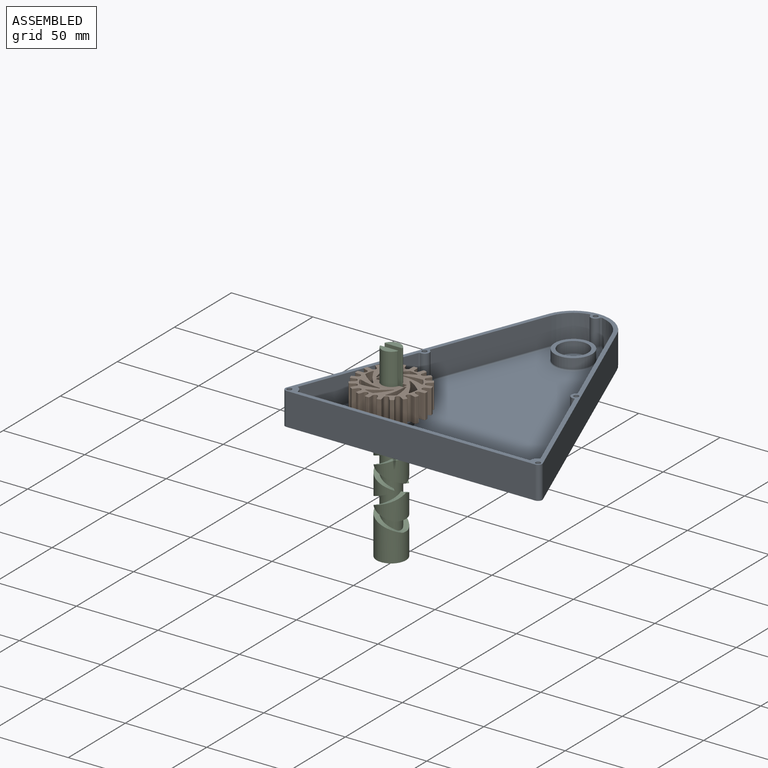
[diagram: assembled view]
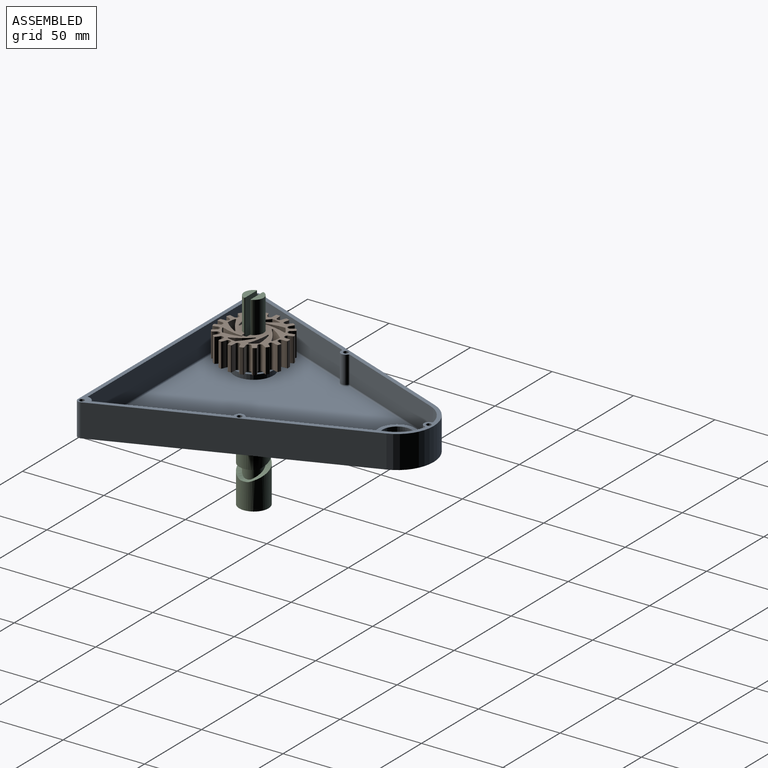
[diagram: assembled view, second angle]
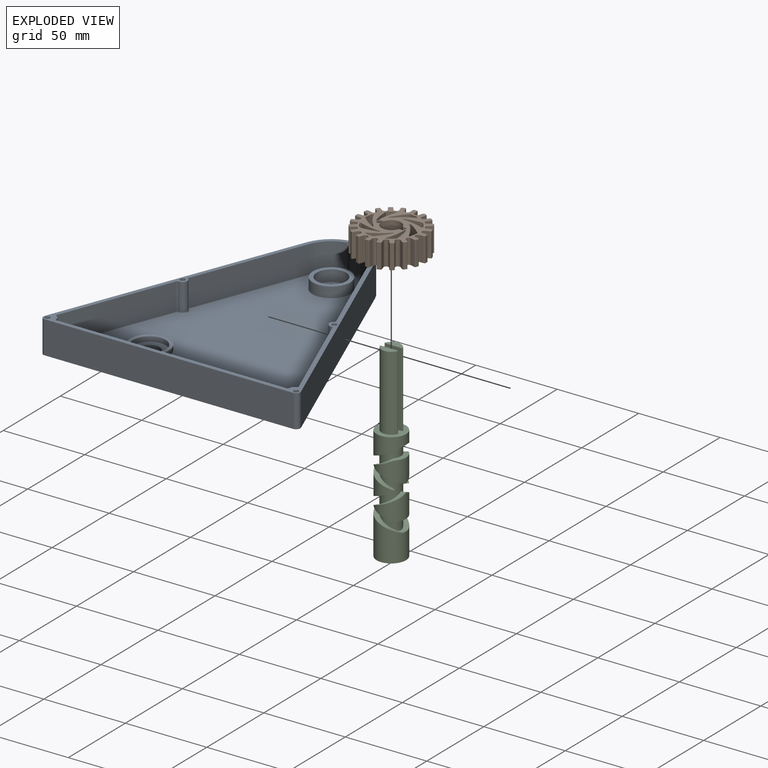
[diagram: exploded view]
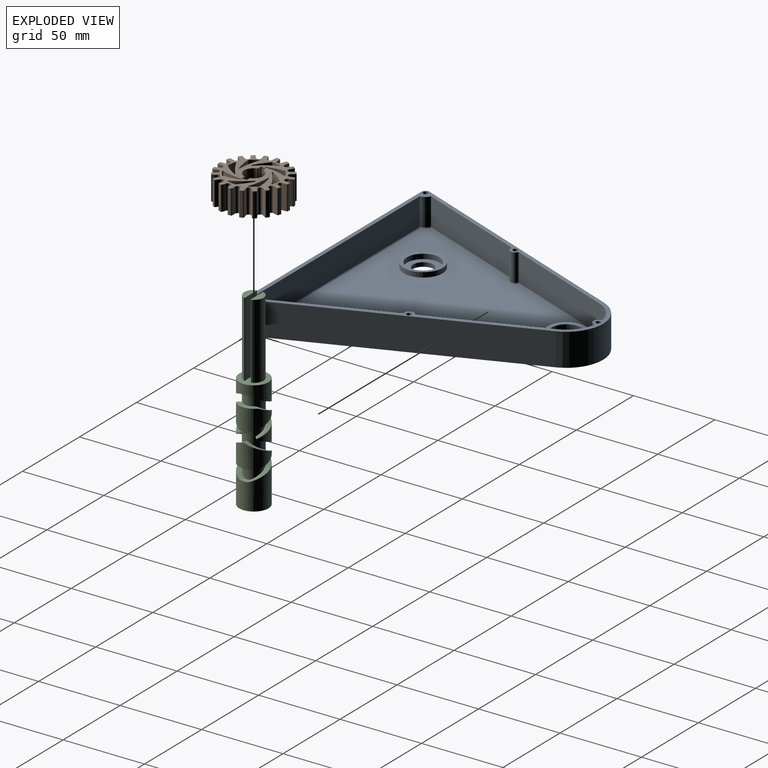
[diagram: exploded view, second angle]
ASSEMBLY  parts=3 mates=2
PART A: 66 faces, bbox 157.7x165x20 mm
  f0: plane 20x20mm, normal (0,0,1), area 191.4mm2, adj f62,f63
  f1: plane 67.86x26.59mm, normal (-0.93,-0.36,0), area 1217.2mm2, adj f4,f16,f25,f50
  f2: plane 157.76x146.99mm, normal (0,0,1), area 12900.2mm2, adj f3,f4,f6,f7,f27,f30,f31,f32
  f3: cylinder r=0.8mm len=68.15mm, axis (0.36,-0.93,0), area 91.6mm2, adj f2,f18,f30,f53
  f4: cylinder r=0.8mm len=68.15mm, axis (0.36,-0.93,0), area 91.2mm2, adj f1,f2,f31,f51
  f5: plane 67.86x26.59mm, normal (0.93,-0.36,0), area 1217.2mm2, adj f6,f16,f24,f59
  f6: cylinder r=0.8mm len=68.15mm, axis (0.36,0.93,0), area 91.2mm2, adj f2,f5,f33,f58
  f7: cylinder r=0.8mm len=68.15mm, axis (0.36,0.93,0), area 91.6mm2, adj f2,f19,f34,f56
  f8: cylinder r=20mm len=16.7mm, axis (0,0,-1), area 334.1mm2, adj f16,f18,f28,f29,f30
  f9: cylinder r=20mm len=16.7mm, axis (0,0,-1), area 334.1mm2, adj f16,f19,f34,f35,f36
  f10: plane 142.67x16.7mm, normal (0,1,0), area 2382.6mm2, adj f16,f24,f25,f32
  f11: plane 18x18mm, normal (0,0,1), area 167.9mm2, adj f20,f21
  f12: plane 152.67x20mm, normal (0,-1,0), area 3053.4mm2, adj f16,f17,f60,f61
  f13: plane 147.3x57.71mm, normal (0.93,0.36,0), area 3164mm2, adj f14,f16,f17,f60
  f14: cylinder r=22.5mm len=41.9mm, axis (0,0,-1), area 1077.6mm2, adj f13,f15,f16,f17
  f15: plane 147.3x57.71mm, normal (-0.93,0.36,0), area 3164mm2, adj f14,f16,f17,f61
  f16: plane 165x157.67mm, normal (0,0,1), area 1352.3mm2, adj f1,f5,f8,f9,f10,f12,f13,f14
  f17: plane 165x157.67mm, normal (0,0,-1), area 15432.6mm2, adj f12,f13,f14,f15,f20,f60,f61,f62
  f18: plane 67.86x26.59mm, normal (-0.93,-0.36,0), area 1217.2mm2, adj f3,f8,f16,f54
  f19: plane 67.86x26.59mm, normal (0.93,-0.36,0), area 1217.2mm2, adj f7,f9,f16,f55
  f20: cylinder r=5.25mm len=10.5mm, axis (0,0,1), area 82.5mm2, adj f11,f17
  f21: cylinder r=9mm len=18mm, axis (0,0,-1), area 395.8mm2, adj f11,f23
  f22: cylinder r=11.5mm len=23mm, axis (0,0,-1), area 448mm2, adj f23,f37
  f23: plane 23x23mm, normal (0,0,1), area 161mm2, adj f21,f22
  f24: cylinder r=5mm len=16.7mm, axis (0,0,-1), area 100mm2, adj f5,f10,f16,f33
  f25: cylinder r=5mm len=16.7mm, axis (0,0,-1), area 100mm2, adj f1,f10,f16,f31
  f26: cylinder r=3mm len=15.5mm, axis (0,0,-1), area 129.7mm2, adj f16,f27,f28,f36
  f27: torus R=5mm, axis (0,0,1), area 32.5mm2, adj f2,f26,f29,f35
  f28: cylinder r=0.8mm len=15.5mm, axis (0,0,-1), area 19.7mm2, adj f8,f16,f26,f29
  f29: bspline ~2.45x2.28mm, area 3.5mm2, adj f8,f27,f28,f30
  f30: torus R=19.2mm, axis (0,0,1), area 23.2mm2, adj f2,f3,f8,f29
  f31: torus R=5.8mm, axis (0,0,1), area 7.2mm2, adj f2,f4,f25,f32
  f32: cylinder r=0.8mm len=142.67mm, axis (-1,0,0), area 178.6mm2, adj f2,f10,f31,f33
  f33: torus R=5.8mm, axis (0,0,1), area 7.2mm2, adj f2,f6,f24,f32
  f34: torus R=19.2mm, axis (0,0,1), area 23.2mm2, adj f2,f7,f9,f35
  f35: bspline ~2.45x2.28mm, area 3.5mm2, adj f9,f27,f34,f36
  f36: cylinder r=0.8mm len=15.5mm, axis (0,0,1), area 19.7mm2, adj f9,f16,f26,f35
  f37: torus R=12.3mm, axis (0,0,1), area 93.1mm2, adj f2,f22
  f38: cylinder r=3mm len=16.7mm, axis (0,0,-1), area 136.1mm2, adj f16,f55,f57,f59
  f39: cylinder r=3mm len=16.7mm, axis (0,0,-1), area 136.1mm2, adj f16,f50,f52,f54
  f40: plane 3x3mm, normal (0,0,1), area 7.1mm2, adj f41
  f41: cylinder r=1.5mm len=17.5mm, axis (0,0,1), area 164.9mm2, adj f16,f40
  f42: plane 3x3mm, normal (0,0,1), area 7.1mm2, adj f43
  f43: cylinder r=1.5mm len=17.5mm, axis (0,0,1), area 164.9mm2, adj f16,f42
  f44: plane 3x3mm, normal (0,0,1), area 7.1mm2, adj f45
  f45: cylinder r=1.5mm len=17.5mm, axis (0,0,1), area 164.9mm2, adj f16,f44
  f46: plane 3x3mm, normal (0,0,1), area 7.1mm2, adj f47
  f47: cylinder r=1.5mm len=17.5mm, axis (0,0,1), area 164.9mm2, adj f16,f46
  f48: plane 3x3mm, normal (0,0,1), area 7.1mm2, adj f49
  f49: cylinder r=1.5mm len=17.5mm, axis (0,0,1), area 164.9mm2, adj f16,f48
  f50: cylinder r=0.8mm len=16.7mm, axis (0,0,-1), area 18.2mm2, adj f1,f16,f39,f51
  f51: sphere r=0.8mm, area 0.9mm2, adj f4,f50,f52
  f52: torus R=3.8mm, axis (0,0,1), area 11.2mm2, adj f2,f39,f51,f53
  f53: sphere r=0.8mm, area 0.9mm2, adj f3,f52,f54
  f54: cylinder r=0.8mm len=16.7mm, axis (0,0,-1), area 18.2mm2, adj f16,f18,f39,f53
  f55: cylinder r=0.8mm len=16.7mm, axis (0,0,-1), area 18.2mm2, adj f16,f19,f38,f56
  f56: sphere r=0.8mm, area 0.9mm2, adj f7,f55,f57
  f57: torus R=3.8mm, axis (0,0,1), area 11.2mm2, adj f2,f38,f56,f58
  f58: sphere r=0.8mm, area 0.9mm2, adj f6,f57,f59
  f59: cylinder r=0.8mm len=16.7mm, axis (0,0,-1), area 18.2mm2, adj f5,f16,f38,f58
  f60: cylinder r=2.5mm len=20mm, axis (0,0,-1), area 97.2mm2, adj f12,f13,f16,f17
  f61: cylinder r=2.5mm len=20mm, axis (0,0,1), area 97.2mm2, adj f12,f15,f16,f17
  f62: cylinder r=6.25mm len=12.5mm, axis (0,0,1), area 98.2mm2, adj f0,f17
  f63: cylinder r=10mm len=20mm, axis (0,0,-1), area 188.5mm2, adj f0,f65
  f64: cylinder r=12mm len=24mm, axis (0,0,-1), area 226.2mm2, adj f2,f65
  f65: plane 24x24mm, normal (0,0,1), area 138.2mm2, adj f63,f64
PART B: 226 faces, bbox 43.1x43.1x15 mm
  f0: plane 43.07x43.07mm, normal (0,0,1), area 775.2mm2, adj f2,f3,f4,f5,f6,f7,f8,f9
  f1: plane 43.07x43.07mm, normal (0,0,-1), area 775.2mm2, adj f2,f3,f4,f5,f6,f7,f8,f9
  f2: cylinder r=6mm len=15mm, axis (0,0,1), area 226.3mm2, adj f0,f1,f156,f160
  f3: cylinder r=1.52mm len=15mm, axis (0,0,-1), area 64.4mm2, adj f0,f1,f4,f122
  f4: plane 15x1mm, normal (-1,0,0), area 15mm2, adj f0,f1,f3,f5
  f5: cylinder r=10mm len=15mm, axis (0,0,-1), area 26.6mm2, adj f0,f1,f4,f186
  f6: cylinder r=21.54mm len=15mm, axis (0,0,-1), area 25.9mm2, adj f0,f1,f186,f187
  f7: cylinder r=10mm len=15mm, axis (0,0,-1), area 26.6mm2, adj f0,f1,f8,f187
  f8: plane 15x1mm, normal (1,0,0), area 15mm2, adj f0,f1,f7,f9
  f9: cylinder r=1.52mm len=15mm, axis (0,0,-1), area 64.4mm2, adj f0,f1,f8,f10
  f10: plane 15x0.95mm, normal (-0.95,-0.31,0), area 15mm2, adj f0,f1,f9,f11
  f11: cylinder r=10mm len=15mm, axis (0,0,-1), area 26.6mm2, adj f0,f1,f10,f188
  f12: cylinder r=21.54mm len=15mm, axis (0,0,-1), area 25.9mm2, adj f0,f1,f188,f189
  f13: cylinder r=10mm len=15mm, axis (0,0,-1), area 26.6mm2, adj f0,f1,f14,f189
  f14: plane 15x0.95mm, normal (0.95,0.31,0), area 15mm2, adj f0,f1,f13,f15
  f15: cylinder r=1.52mm len=15mm, axis (0,0,-1), area 64.4mm2, adj f0,f1,f14,f16
  f16: plane 15x0.81mm, normal (-0.81,-0.59,0), area 15mm2, adj f0,f1,f15,f17
  f17: cylinder r=10mm len=15mm, axis (0,0,-1), area 26.6mm2, adj f0,f1,f16,f190
  f18: cylinder r=21.54mm len=15mm, axis (0,0,-1), area 25.9mm2, adj f0,f1,f190,f191
  f19: cylinder r=10mm len=15mm, axis (0,0,-1), area 26.6mm2, adj f0,f1,f20,f191
  f20: plane 15x0.81mm, normal (0.81,0.59,0), area 15mm2, adj f0,f1,f19,f21
  f21: cylinder r=1.52mm len=15mm, axis (0,0,-1), area 64.4mm2, adj f0,f1,f20,f22
  f22: plane 15x0.81mm, normal (-0.59,-0.81,0), area 15mm2, adj f0,f1,f21,f23
  f23: cylinder r=10mm len=15mm, axis (0,0,-1), area 26.6mm2, adj f0,f1,f22,f192
  f24: cylinder r=21.54mm len=15mm, axis (0,0,-1), area 25.9mm2, adj f0,f1,f192,f193
  f25: cylinder r=10mm len=15mm, axis (0,0,-1), area 26.6mm2, adj f0,f1,f26,f193
  f26: plane 15x0.81mm, normal (0.59,0.81,0), area 15mm2, adj f0,f1,f25,f27
  f27: cylinder r=1.52mm len=15mm, axis (0,0,-1), area 64.4mm2, adj f0,f1,f26,f28
  f28: plane 15x0.95mm, normal (-0.31,-0.95,0), area 15mm2, adj f0,f1,f27,f29
  f29: cylinder r=10mm len=15mm, axis (0,0,-1), area 26.6mm2, adj f0,f1,f28,f194
  f30: cylinder r=21.54mm len=15mm, axis (0,0,-1), area 25.9mm2, adj f0,f1,f194,f195
  f31: cylinder r=10mm len=15mm, axis (0,0,-1), area 26.6mm2, adj f0,f1,f32,f195
  f32: plane 15x0.95mm, normal (0.31,0.95,0), area 15mm2, adj f0,f1,f31,f33
  f33: cylinder r=1.52mm len=15mm, axis (0,0,-1), area 64.4mm2, adj f0,f1,f32,f34
  f34: plane 15x1mm, normal (0,-1,0), area 15mm2, adj f0,f1,f33,f35
  f35: cylinder r=10mm len=15mm, axis (0,0,-1), area 26.6mm2, adj f0,f1,f34,f196
  f36: cylinder r=21.54mm len=15mm, axis (0,0,-1), area 25.9mm2, adj f0,f1,f196,f197
  f37: cylinder r=10mm len=15mm, axis (0,0,-1), area 26.6mm2, adj f0,f1,f38,f197
  f38: plane 15x1mm, normal (0,1,0), area 15mm2, adj f0,f1,f37,f39
  f39: cylinder r=1.52mm len=15mm, axis (0,0,-1), area 64.4mm2, adj f0,f1,f38,f40
  f40: plane 15x0.95mm, normal (0.31,-0.95,0), area 15mm2, adj f0,f1,f39,f41
  f41: cylinder r=10mm len=15mm, axis (0,0,-1), area 26.6mm2, adj f0,f1,f40,f198
  f42: cylinder r=21.54mm len=15mm, axis (0,0,-1), area 25.9mm2, adj f0,f1,f198,f199
  f43: cylinder r=10mm len=15mm, axis (0,0,-1), area 26.6mm2, adj f0,f1,f44,f199
  f44: plane 15x0.95mm, normal (-0.31,0.95,0), area 15mm2, adj f0,f1,f43,f45
  f45: cylinder r=1.52mm len=15mm, axis (0,0,-1), area 64.4mm2, adj f0,f1,f44,f46
  f46: plane 15x0.81mm, normal (0.59,-0.81,0), area 15mm2, adj f0,f1,f45,f47
  f47: cylinder r=10mm len=15mm, axis (0,0,-1), area 26.6mm2, adj f0,f1,f46,f200
  f48: cylinder r=21.54mm len=15mm, axis (0,0,-1), area 25.9mm2, adj f0,f1,f200,f201
  f49: cylinder r=10mm len=15mm, axis (0,0,-1), area 26.6mm2, adj f0,f1,f50,f201
  f50: plane 15x0.81mm, normal (-0.59,0.81,0), area 15mm2, adj f0,f1,f49,f51
  f51: cylinder r=1.52mm len=15mm, axis (0,0,-1), area 64.4mm2, adj f0,f1,f50,f52
  f52: plane 15x0.81mm, normal (0.81,-0.59,0), area 15mm2, adj f0,f1,f51,f53
  f53: cylinder r=10mm len=15mm, axis (0,0,-1), area 26.6mm2, adj f0,f1,f52,f202
  f54: cylinder r=21.54mm len=15mm, axis (0,0,-1), area 25.9mm2, adj f0,f1,f202,f203
  f55: cylinder r=10mm len=15mm, axis (0,0,-1), area 26.6mm2, adj f0,f1,f56,f203
  f56: plane 15x0.81mm, normal (-0.81,0.59,0), area 15mm2, adj f0,f1,f55,f57
  f57: cylinder r=1.52mm len=15mm, axis (0,0,-1), area 64.4mm2, adj f0,f1,f56,f58
  f58: plane 15x0.95mm, normal (0.95,-0.31,0), area 15mm2, adj f0,f1,f57,f59
  f59: cylinder r=10mm len=15mm, axis (0,0,-1), area 26.6mm2, adj f0,f1,f58,f204
  f60: cylinder r=21.54mm len=15mm, axis (0,0,-1), area 25.9mm2, adj f0,f1,f204,f205
  f61: cylinder r=10mm len=15mm, axis (0,0,-1), area 26.6mm2, adj f0,f1,f62,f205
  f62: plane 15x0.95mm, normal (-0.95,0.31,0), area 15mm2, adj f0,f1,f61,f63
  f63: cylinder r=1.52mm len=15mm, axis (0,0,-1), area 64.4mm2, adj f0,f1,f62,f64
  f64: plane 15x1mm, normal (1,0,0), area 15mm2, adj f0,f1,f63,f65
  f65: cylinder r=10mm len=15mm, axis (0,0,-1), area 26.6mm2, adj f0,f1,f64,f206
  f66: cylinder r=21.54mm len=15mm, axis (0,0,-1), area 25.9mm2, adj f0,f1,f206,f207
  f67: cylinder r=10mm len=15mm, axis (0,0,-1), area 26.6mm2, adj f0,f1,f68,f207
  f68: plane 15x1mm, normal (-1,0,0), area 15mm2, adj f0,f1,f67,f69
  f69: cylinder r=1.52mm len=15mm, axis (0,0,-1), area 64.4mm2, adj f0,f1,f68,f70
  f70: plane 15x0.95mm, normal (0.95,0.31,0), area 15mm2, adj f0,f1,f69,f71
  f71: cylinder r=10mm len=15mm, axis (0,0,-1), area 26.6mm2, adj f0,f1,f70,f208
  f72: cylinder r=21.54mm len=15mm, axis (0,0,-1), area 25.9mm2, adj f0,f1,f208,f209
  f73: cylinder r=10mm len=15mm, axis (0,0,-1), area 26.6mm2, adj f0,f1,f74,f209
  f74: plane 15x0.95mm, normal (-0.95,-0.31,0), area 15mm2, adj f0,f1,f73,f75
  f75: cylinder r=1.52mm len=15mm, axis (0,0,-1), area 64.4mm2, adj f0,f1,f74,f76
  f76: plane 15x0.81mm, normal (0.81,0.59,0), area 15mm2, adj f0,f1,f75,f77
  f77: cylinder r=10mm len=15mm, axis (0,0,-1), area 26.6mm2, adj f0,f1,f76,f210
  f78: cylinder r=21.54mm len=15mm, axis (0,0,-1), area 25.9mm2, adj f0,f1,f210,f211
  f79: cylinder r=10mm len=15mm, axis (0,0,-1), area 26.6mm2, adj f0,f1,f80,f211
  f80: plane 15x0.81mm, normal (-0.81,-0.59,0), area 15mm2, adj f0,f1,f79,f81
  f81: cylinder r=1.52mm len=15mm, axis (0,0,-1), area 64.4mm2, adj f0,f1,f80,f82
  f82: plane 15x0.81mm, normal (0.59,0.81,0), area 15mm2, adj f0,f1,f81,f83
  f83: cylinder r=10mm len=15mm, axis (0,0,-1), area 26.6mm2, adj f0,f1,f82,f212
  f84: cylinder r=21.54mm len=15mm, axis (0,0,-1), area 25.9mm2, adj f0,f1,f212,f213
  f85: cylinder r=10mm len=15mm, axis (0,0,-1), area 26.6mm2, adj f0,f1,f86,f213
  f86: plane 15x0.81mm, normal (-0.59,-0.81,0), area 15mm2, adj f0,f1,f85,f87
  f87: cylinder r=1.52mm len=15mm, axis (0,0,-1), area 64.4mm2, adj f0,f1,f86,f88
  f88: plane 15x0.95mm, normal (0.31,0.95,0), area 15mm2, adj f0,f1,f87,f89
  f89: cylinder r=10mm len=15mm, axis (0,0,-1), area 26.6mm2, adj f0,f1,f88,f214
  f90: cylinder r=21.54mm len=15mm, axis (0,0,-1), area 25.9mm2, adj f0,f1,f214,f215
  f91: cylinder r=10mm len=15mm, axis (0,0,-1), area 26.6mm2, adj f0,f1,f92,f215
  f92: plane 15x0.95mm, normal (-0.31,-0.95,0), area 15mm2, adj f0,f1,f91,f93
  f93: cylinder r=1.52mm len=15mm, axis (0,0,-1), area 64.4mm2, adj f0,f1,f92,f94
  f94: plane 15x1mm, normal (0,1,0), area 15mm2, adj f0,f1,f93,f95
  f95: cylinder r=10mm len=15mm, axis (0,0,-1), area 26.6mm2, adj f0,f1,f94,f216
  f96: cylinder r=21.54mm len=15mm, axis (0,0,-1), area 25.9mm2, adj f0,f1,f216,f217
  f97: cylinder r=10mm len=15mm, axis (0,0,-1), area 26.6mm2, adj f0,f1,f98,f217
  f98: plane 15x1mm, normal (0,-1,0), area 15mm2, adj f0,f1,f97,f99
  f99: cylinder r=1.52mm len=15mm, axis (0,0,-1), area 64.4mm2, adj f0,f1,f98,f100
  f100: plane 15x0.95mm, normal (-0.31,0.95,0), area 15mm2, adj f0,f1,f99,f101
  f101: cylinder r=10mm len=15mm, axis (0,0,-1), area 26.6mm2, adj f0,f1,f100,f218
  f102: cylinder r=21.54mm len=15mm, axis (0,0,-1), area 25.9mm2, adj f0,f1,f218,f219
  f103: cylinder r=10mm len=15mm, axis (0,0,-1), area 26.6mm2, adj f0,f1,f104,f219
  f104: plane 15x0.95mm, normal (0.31,-0.95,0), area 15mm2, adj f0,f1,f103,f105
  f105: cylinder r=1.52mm len=15mm, axis (0,0,-1), area 64.4mm2, adj f0,f1,f104,f106
  f106: plane 15x0.81mm, normal (-0.59,0.81,0), area 15mm2, adj f0,f1,f105,f107
  f107: cylinder r=10mm len=15mm, axis (0,0,-1), area 26.6mm2, adj f0,f1,f106,f220
  f108: cylinder r=21.54mm len=15mm, axis (0,0,-1), area 25.9mm2, adj f0,f1,f220,f221
  f109: cylinder r=10mm len=15mm, axis (0,0,-1), area 26.6mm2, adj f0,f1,f110,f221
  f110: plane 15x0.81mm, normal (0.59,-0.81,0), area 15mm2, adj f0,f1,f109,f111
  f111: cylinder r=1.52mm len=15mm, axis (0,0,-1), area 64.4mm2, adj f0,f1,f110,f112
  f112: plane 15x0.81mm, normal (-0.81,0.59,0), area 15mm2, adj f0,f1,f111,f113
  f113: cylinder r=10mm len=15mm, axis (0,0,-1), area 26.6mm2, adj f0,f1,f112,f222
  f114: cylinder r=21.54mm len=15mm, axis (0,0,-1), area 25.9mm2, adj f0,f1,f222,f223
  f115: cylinder r=10mm len=15mm, axis (0,0,-1), area 26.6mm2, adj f0,f1,f116,f223
  f116: plane 15x0.81mm, normal (0.81,-0.59,0), area 15mm2, adj f0,f1,f115,f117
  f117: cylinder r=1.52mm len=15mm, axis (0,0,-1), area 64.4mm2, adj f0,f1,f116,f118
  f118: plane 15x0.95mm, normal (-0.95,0.31,0), area 15mm2, adj f0,f1,f117,f119
  f119: cylinder r=10mm len=15mm, axis (0,0,-1), area 26.6mm2, adj f0,f1,f118,f224
  f120: cylinder r=21.54mm len=15mm, axis (0,0,-1), area 25.9mm2, adj f0,f1,f224,f225
  f121: cylinder r=10mm len=15mm, axis (0,0,-1), area 26.6mm2, adj f0,f1,f122,f225
  f122: plane 15x0.95mm, normal (0.95,-0.31,0), area 15mm2, adj f0,f1,f3,f121
  f123: cylinder r=40mm len=15mm, axis (0,0,1), area 202.7mm2, adj f0,f1,f183,f185
  f124: cylinder r=16.13mm len=15mm, axis (0,0,1), area 77.7mm2, adj f0,f1,f184,f185
  f125: cylinder r=40mm len=15mm, axis (0,0,1), area 160.8mm2, adj f0,f1,f183,f184
  f126: cylinder r=6mm len=15mm, axis (0,0,1), area 226.3mm2, adj f0,f1,f157,f161
  f127: cylinder r=40mm len=15mm, axis (0,0,1), area 202.7mm2, adj f0,f1,f168,f170
  f128: cylinder r=16.13mm len=15mm, axis (0,0,1), area 77.7mm2, adj f0,f1,f169,f170
  f129: cylinder r=40mm len=15mm, axis (0,0,1), area 160.8mm2, adj f0,f1,f168,f169
  f130: cylinder r=40mm len=15mm, axis (0,0,1), area 202.7mm2, adj f0,f1,f162,f164
  f131: cylinder r=16.13mm len=15mm, axis (0,0,1), area 77.7mm2, adj f0,f1,f163,f164
  f132: cylinder r=40mm len=15mm, axis (0,0,1), area 160.8mm2, adj f0,f1,f162,f163
  f133: cylinder r=40mm len=15mm, axis (0,0,1), area 202.7mm2, adj f0,f1,f165,f167
  f134: cylinder r=16.13mm len=15mm, axis (0,0,1), area 77.7mm2, adj f0,f1,f166,f167
  f135: cylinder r=40mm len=15mm, axis (0,0,1), area 160.8mm2, adj f0,f1,f165,f166
  f136: cylinder r=40mm len=15mm, axis (0,0,1), area 202.7mm2, adj f0,f1,f177,f179
  f137: cylinder r=16.13mm len=15mm, axis (0,0,1), area 77.7mm2, adj f0,f1,f178,f179
  f138: cylinder r=40mm len=15mm, axis (0,0,1), area 160.8mm2, adj f0,f1,f177,f178
  f139: cylinder r=40mm len=15mm, axis (0,0,1), area 202.7mm2, adj f0,f1,f180,f182
  f140: cylinder r=16.13mm len=15mm, axis (0,0,1), area 77.7mm2, adj f0,f1,f180,f181
  f141: cylinder r=40mm len=15mm, axis (0,0,1), area 160.8mm2, adj f0,f1,f181,f182
  f142: cylinder r=40mm len=15mm, axis (0,0,1), area 202.7mm2, adj f0,f1,f171,f173
  f143: cylinder r=16.13mm len=15mm, axis (0,0,1), area 77.7mm2, adj f0,f1,f172,f173
  f144: cylinder r=40mm len=15mm, axis (0,0,1), area 160.8mm2, adj f0,f1,f171,f172
  f145: cylinder r=40mm len=15mm, axis (0,0,1), area 202.7mm2, adj f0,f1,f174,f176
  f146: cylinder r=16.13mm len=15mm, axis (0,0,1), area 77.7mm2, adj f0,f1,f175,f176
  f147: cylinder r=40mm len=15mm, axis (0,0,1), area 160.8mm2, adj f0,f1,f174,f175
  f148: plane 15x2.01mm, normal (0,1,0), area 30.2mm2, adj f0,f1,f154,f157
  f149: plane 15x2.35mm, normal (-1,0,0), area 35.2mm2, adj f0,f1,f154,f155
  f150: plane 15x2.01mm, normal (0,-1,0), area 30.2mm2, adj f0,f1,f155,f156
  f151: plane 15x2.01mm, normal (0,1,0), area 30.2mm2, adj f0,f1,f158,f161
  f152: plane 15x2.01mm, normal (0,-1,0), area 30.2mm2, adj f0,f1,f159,f160
  f153: plane 15x2.35mm, normal (1,0,0), area 35.2mm2, adj f0,f1,f158,f159
  f154: cylinder r=0.4mm len=15mm, axis (0,0,1), area 9.4mm2, adj f0,f1,f148,f149
  f155: cylinder r=0.4mm len=15mm, axis (0,0,-1), area 9.4mm2, adj f0,f1,f149,f150
  f156: cylinder r=0.4mm len=15mm, axis (0,0,1), area 7.5mm2, adj f0,f1,f2,f150
  f157: cylinder r=0.4mm len=15mm, axis (0,0,1), area 7.5mm2, adj f0,f1,f126,f148
  f158: cylinder r=0.4mm len=15mm, axis (0,0,-1), area 9.4mm2, adj f0,f1,f151,f153
  f159: cylinder r=0.4mm len=15mm, axis (0,0,1), area 9.4mm2, adj f0,f1,f152,f153
  f160: cylinder r=0.4mm len=15mm, axis (0,0,1), area 7.5mm2, adj f0,f1,f2,f152
  f161: cylinder r=0.4mm len=15mm, axis (0,0,1), area 7.5mm2, adj f0,f1,f126,f151
  f162: cylinder r=0.4mm len=15mm, axis (0,0,1), area 17mm2, adj f0,f1,f130,f132
  f163: cylinder r=0.4mm len=15mm, axis (0,0,-1), area 4.9mm2, adj f0,f1,f131,f132
  f164: cylinder r=0.4mm len=15mm, axis (0,0,1), area 14.3mm2, adj f0,f1,f130,f131
  f165: cylinder r=0.4mm len=15mm, axis (0,0,1), area 17mm2, adj f0,f1,f133,f135
  f166: cylinder r=0.4mm len=15mm, axis (0,0,-1), area 4.9mm2, adj f0,f1,f134,f135
  f167: cylinder r=0.4mm len=15mm, axis (0,0,1), area 14.3mm2, adj f0,f1,f133,f134
  f168: cylinder r=0.4mm len=15mm, axis (0,0,1), area 17mm2, adj f0,f1,f127,f129
  f169: cylinder r=0.4mm len=15mm, axis (0,0,-1), area 4.9mm2, adj f0,f1,f128,f129
  f170: cylinder r=0.4mm len=15mm, axis (0,0,1), area 14.3mm2, adj f0,f1,f127,f128
  f171: cylinder r=0.4mm len=15mm, axis (0,0,1), area 17mm2, adj f0,f1,f142,f144
  f172: cylinder r=0.4mm len=15mm, axis (0,0,-1), area 4.9mm2, adj f0,f1,f143,f144
  f173: cylinder r=0.4mm len=15mm, axis (0,0,1), area 14.3mm2, adj f0,f1,f142,f143
  f174: cylinder r=0.4mm len=15mm, axis (0,0,1), area 17mm2, adj f0,f1,f145,f147
  f175: cylinder r=0.4mm len=15mm, axis (0,0,-1), area 4.9mm2, adj f0,f1,f146,f147
  f176: cylinder r=0.4mm len=15mm, axis (0,0,1), area 14.3mm2, adj f0,f1,f145,f146
  f177: cylinder r=0.4mm len=15mm, axis (0,0,1), area 17mm2, adj f0,f1,f136,f138
  f178: cylinder r=0.4mm len=15mm, axis (0,0,-1), area 4.9mm2, adj f0,f1,f137,f138
  f179: cylinder r=0.4mm len=15mm, axis (0,0,1), area 14.3mm2, adj f0,f1,f136,f137
  f180: cylinder r=0.4mm len=15mm, axis (0,0,1), area 14.3mm2, adj f0,f1,f139,f140
  f181: cylinder r=0.4mm len=15mm, axis (0,0,-1), area 4.9mm2, adj f0,f1,f140,f141
  f182: cylinder r=0.4mm len=15mm, axis (0,0,1), area 17mm2, adj f0,f1,f139,f141
  f183: cylinder r=0.4mm len=15mm, axis (0,0,1), area 17mm2, adj f0,f1,f123,f125
  f184: cylinder r=0.4mm len=15mm, axis (0,0,-1), area 4.9mm2, adj f0,f1,f124,f125
  f185: cylinder r=0.4mm len=15mm, axis (0,0,1), area 14.3mm2, adj f0,f1,f123,f124
  f186: cylinder r=0.4mm len=15mm, axis (0,0,-1), area 8.1mm2, adj f0,f1,f5,f6
  f187: cylinder r=0.4mm len=15mm, axis (0,0,-1), area 8.1mm2, adj f0,f1,f6,f7
  f188: cylinder r=0.4mm len=15mm, axis (0,0,-1), area 8.1mm2, adj f0,f1,f11,f12
  f189: cylinder r=0.4mm len=15mm, axis (0,0,-1), area 8.1mm2, adj f0,f1,f12,f13
  f190: cylinder r=0.4mm len=15mm, axis (0,0,-1), area 8.1mm2, adj f0,f1,f17,f18
  f191: cylinder r=0.4mm len=15mm, axis (0,0,-1), area 8.1mm2, adj f0,f1,f18,f19
  f192: cylinder r=0.4mm len=15mm, axis (0,0,-1), area 8.1mm2, adj f0,f1,f23,f24
  f193: cylinder r=0.4mm len=15mm, axis (0,0,-1), area 8.1mm2, adj f0,f1,f24,f25
  f194: cylinder r=0.4mm len=15mm, axis (0,0,-1), area 8.1mm2, adj f0,f1,f29,f30
  f195: cylinder r=0.4mm len=15mm, axis (0,0,-1), area 8.1mm2, adj f0,f1,f30,f31
  f196: cylinder r=0.4mm len=15mm, axis (0,0,-1), area 8.1mm2, adj f0,f1,f35,f36
  f197: cylinder r=0.4mm len=15mm, axis (0,0,-1), area 8.1mm2, adj f0,f1,f36,f37
  f198: cylinder r=0.4mm len=15mm, axis (0,0,-1), area 8.1mm2, adj f0,f1,f41,f42
  f199: cylinder r=0.4mm len=15mm, axis (0,0,-1), area 8.1mm2, adj f0,f1,f42,f43
  f200: cylinder r=0.4mm len=15mm, axis (0,0,-1), area 8.1mm2, adj f0,f1,f47,f48
  f201: cylinder r=0.4mm len=15mm, axis (0,0,-1), area 8.1mm2, adj f0,f1,f48,f49
  f202: cylinder r=0.4mm len=15mm, axis (0,0,-1), area 8.1mm2, adj f0,f1,f53,f54
  f203: cylinder r=0.4mm len=15mm, axis (0,0,-1), area 8.1mm2, adj f0,f1,f54,f55
  f204: cylinder r=0.4mm len=15mm, axis (0,0,-1), area 8.1mm2, adj f0,f1,f59,f60
  f205: cylinder r=0.4mm len=15mm, axis (0,0,-1), area 8.1mm2, adj f0,f1,f60,f61
  f206: cylinder r=0.4mm len=15mm, axis (0,0,-1), area 8.1mm2, adj f0,f1,f65,f66
  f207: cylinder r=0.4mm len=15mm, axis (0,0,-1), area 8.1mm2, adj f0,f1,f66,f67
  f208: cylinder r=0.4mm len=15mm, axis (0,0,-1), area 8.1mm2, adj f0,f1,f71,f72
  f209: cylinder r=0.4mm len=15mm, axis (0,0,-1), area 8.1mm2, adj f0,f1,f72,f73
  f210: cylinder r=0.4mm len=15mm, axis (0,0,-1), area 8.1mm2, adj f0,f1,f77,f78
  f211: cylinder r=0.4mm len=15mm, axis (0,0,-1), area 8.1mm2, adj f0,f1,f78,f79
  f212: cylinder r=0.4mm len=15mm, axis (0,0,-1), area 8.1mm2, adj f0,f1,f83,f84
  f213: cylinder r=0.4mm len=15mm, axis (0,0,-1), area 8.1mm2, adj f0,f1,f84,f85
  f214: cylinder r=0.4mm len=15mm, axis (0,0,-1), area 8.1mm2, adj f0,f1,f89,f90
  f215: cylinder r=0.4mm len=15mm, axis (0,0,-1), area 8.1mm2, adj f0,f1,f90,f91
  f216: cylinder r=0.4mm len=15mm, axis (0,0,-1), area 8.1mm2, adj f0,f1,f95,f96
  f217: cylinder r=0.4mm len=15mm, axis (0,0,-1), area 8.1mm2, adj f0,f1,f96,f97
  f218: cylinder r=0.4mm len=15mm, axis (0,0,-1), area 8.1mm2, adj f0,f1,f101,f102
  f219: cylinder r=0.4mm len=15mm, axis (0,0,-1), area 8.1mm2, adj f0,f1,f102,f103
  f220: cylinder r=0.4mm len=15mm, axis (0,0,-1), area 8.1mm2, adj f0,f1,f107,f108
  f221: cylinder r=0.4mm len=15mm, axis (0,0,-1), area 8.1mm2, adj f0,f1,f108,f109
  f222: cylinder r=0.4mm len=15mm, axis (0,0,-1), area 8.1mm2, adj f0,f1,f113,f114
  f223: cylinder r=0.4mm len=15mm, axis (0,0,-1), area 8.1mm2, adj f0,f1,f114,f115
  f224: cylinder r=0.4mm len=15mm, axis (0,0,-1), area 8.1mm2, adj f0,f1,f119,f120
  f225: cylinder r=0.4mm len=15mm, axis (0,0,-1), area 8.1mm2, adj f0,f1,f120,f121
PART C: 58 faces, bbox 24x25.2x116 mm
  f0: cylinder r=5.95mm len=46mm, axis (0,0,1), area 642.1mm2, adj f1,f5,f42,f43
  f1: plane 11.03x4.2mm, normal (0,0,-1), area 34.9mm2, adj f0,f40,f42,f43
  f2: cylinder r=9mm len=18mm, axis (0,0,-1), area 384.3mm2, adj f13,f15,f29,f31,f50,f52,f56,f57
  f3: plane 3.05x3mm, normal (0,0,1), area 5.4mm2, adj f4,f7,f17,f18
  f4: cylinder r=9mm len=18mm, axis (0,0,-1), area 603.8mm2, adj f3,f5,f6,f8,f17,f18,f51
  f5: plane 18x18mm, normal (0,0,-1), area 184.6mm2, adj f0,f4,f38,f40,f41,f42,f43,f44
  f6: bspline ~24x12.62mm, area 67.3mm2, adj f4,f7,f17,f51
  f7: cylinder r=6mm len=48mm, axis (0,0,-1), area 718.6mm2, adj f3,f6,f8,f9,f10,f12,f13,f14
  f8: bspline ~24x12.62mm, area 67.3mm2, adj f4,f7,f18,f51
  f9: bspline ~19.42x9.09mm, area 34.5mm2, adj f7,f11,f19,f54
  f10: bspline ~19.42x9.09mm, area 34.5mm2, adj f7,f11,f20,f55
  f11: cylinder r=9mm len=18mm, axis (0,0,-1), area 361.4mm2, adj f9,f10,f12,f14,f16,f19,f20,f53
  f12: bspline ~21.71x12.62mm, area 58.6mm2, adj f7,f11,f53,f55
  f13: bspline ~21.71x12.62mm, area 58.6mm2, adj f2,f7,f52,f57
  f14: bspline ~21.71x12.62mm, area 58.6mm2, adj f7,f11,f53,f54
  f15: bspline ~21.71x12.62mm, area 58.6mm2, adj f2,f7,f56,f57
  f16: plane 12x4.02mm, normal (0,0,-1), area 30.6mm2, adj f7,f11,f19,f20
  f17: bspline ~5.53x3.52mm, area 7.2mm2, adj f3,f4,f6,f7
  f18: bspline ~5.22x3.39mm, area 7.2mm2, adj f3,f4,f7,f8
  f19: bspline ~4.73x4.36mm, area 7.3mm2, adj f7,f9,f11,f16
  f20: bspline ~5.55x5.24mm, area 7.3mm2, adj f7,f10,f11,f16
  f21: plane 3.05x3mm, normal (0,0,-1), area 5.4mm2, adj f7,f22,f33,f34
  f22: cylinder r=9mm len=26.21mm, axis (0,0,1), area 1169.3mm2, adj f21,f23,f24,f33,f34,f37,f49
  f23: bspline ~24x12.62mm, area 67.3mm2, adj f7,f22,f33,f49
  f24: bspline ~24x12.62mm, area 67.3mm2, adj f7,f22,f34,f49
  f25: bspline ~19.42x9.09mm, area 34.5mm2, adj f7,f27,f35,f47
  f26: bspline ~19.42x9.09mm, area 34.5mm2, adj f7,f27,f36,f46
  f27: cylinder r=9mm len=18mm, axis (0,0,1), area 361.4mm2, adj f25,f26,f28,f30,f32,f35,f36,f46
  f28: bspline ~21.71x12.62mm, area 58.6mm2, adj f7,f27,f46,f48
  f29: bspline ~21.71x12.62mm, area 58.6mm2, adj f2,f7,f50,f52
  f30: bspline ~21.71x12.62mm, area 58.6mm2, adj f7,f27,f47,f48
  f31: bspline ~21.71x12.62mm, area 58.6mm2, adj f2,f7,f50,f56
  f32: plane 12x4.02mm, normal (0,0,1), area 30.6mm2, adj f7,f27,f35,f36
  f33: bspline ~5.53x3.52mm, area 7.2mm2, adj f7,f21,f22,f23
  f34: bspline ~5.22x3.39mm, area 7.2mm2, adj f7,f21,f22,f24
  f35: bspline ~4.73x4.36mm, area 7.3mm2, adj f7,f25,f27,f32
  f36: bspline ~5.55x5.24mm, area 7.3mm2, adj f7,f26,f27,f32
  f37: plane 18x18mm, normal (0,0,1), area 254.5mm2, adj f22
  f38: cylinder r=5.95mm len=46mm, axis (0,0,1), area 642.1mm2, adj f5,f39,f44,f45
  f39: plane 11.03x4.2mm, normal (0,0,-1), area 34.9mm2, adj f38,f41,f44,f45
  f40: plane 46x10.23mm, normal (0,1,0), area 470.7mm2, adj f1,f5,f42,f43
  f41: plane 46x10.23mm, normal (0,-1,0), area 470.7mm2, adj f5,f39,f44,f45
  f42: cylinder r=0.4mm len=46mm, axis (0,0,1), area 36.2mm2, adj f0,f1,f5,f40
  f43: cylinder r=0.4mm len=46mm, axis (0,0,1), area 36.2mm2, adj f0,f1,f5,f40
  f44: cylinder r=0.4mm len=46mm, axis (0,0,1), area 36.2mm2, adj f5,f38,f39,f41
  f45: cylinder r=0.4mm len=46mm, axis (0,0,1), area 36.2mm2, adj f5,f38,f39,f41
  f46: bspline ~3.69x3.45mm, area 2mm2, adj f7,f26,f27,f28
  f47: bspline ~3.68x3.44mm, area 2mm2, adj f7,f25,f27,f30
  f48: bspline ~3.74x0.32mm, area 0.8mm2, adj f7,f27,f28,f30
  f49: bspline ~3.74x0.32mm, area 0.8mm2, adj f7,f22,f23,f24
  f50: bspline ~3.74x0.32mm, area 0.8mm2, adj f2,f7,f29,f31
  f51: bspline ~3.74x0.32mm, area 0.8mm2, adj f4,f6,f7,f8
  f52: bspline ~3.68x3.44mm, area 2mm2, adj f2,f7,f13,f29
  f53: bspline ~3.74x0.32mm, area 0.8mm2, adj f7,f11,f12,f14
  f54: bspline ~3.68x3.44mm, area 2mm2, adj f7,f9,f11,f14
  f55: bspline ~3.69x3.45mm, area 2mm2, adj f7,f10,f11,f12
  f56: bspline ~3.69x3.45mm, area 2mm2, adj f2,f7,f15,f31
  f57: bspline ~3.74x0.32mm, area 0.8mm2, adj f2,f7,f13,f15
PLACE A at identity
PLACE B t=(-33.7,-111.5,9.5)mm
PLACE C rot(axis=(1,0,0),180deg) t=(-33.7,-111.5,-2)mm
MATE fastened B.f2 <-> A.f62  axis (0,0,-1) through (-33.7,-111.5,9.5)mm
MATE fastened C.f2 <-> A.f62  axis (0,0,1) through (-33.7,-111.5,-2)mm
